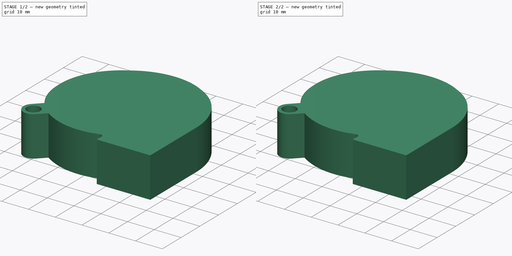
[diagram: build sequence overview — one tinted view per stage of 2, left to right]
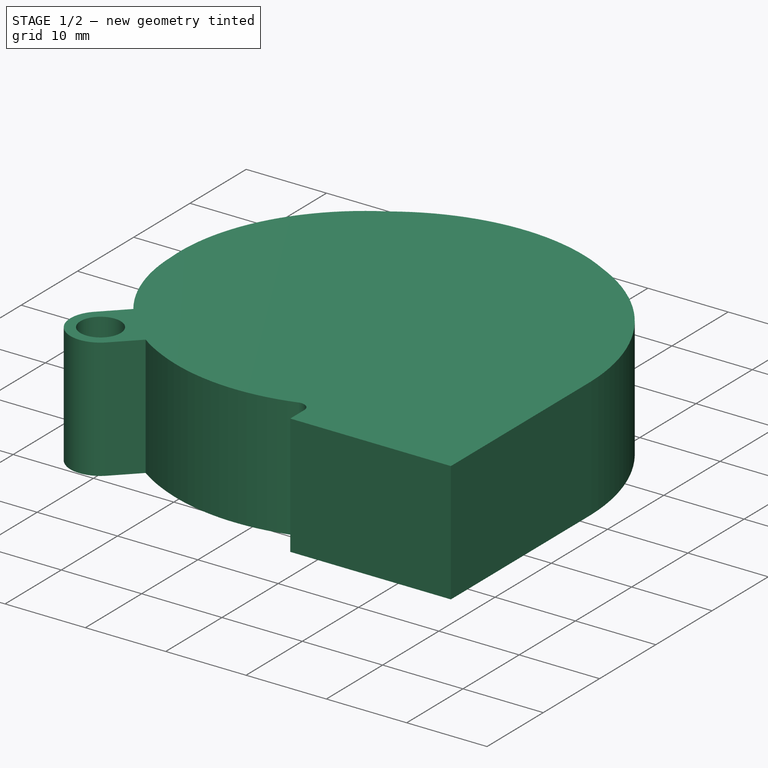
[diagram: stage 1 of 2 — iso view after this stage's code; geometry added in this stage tinted green]
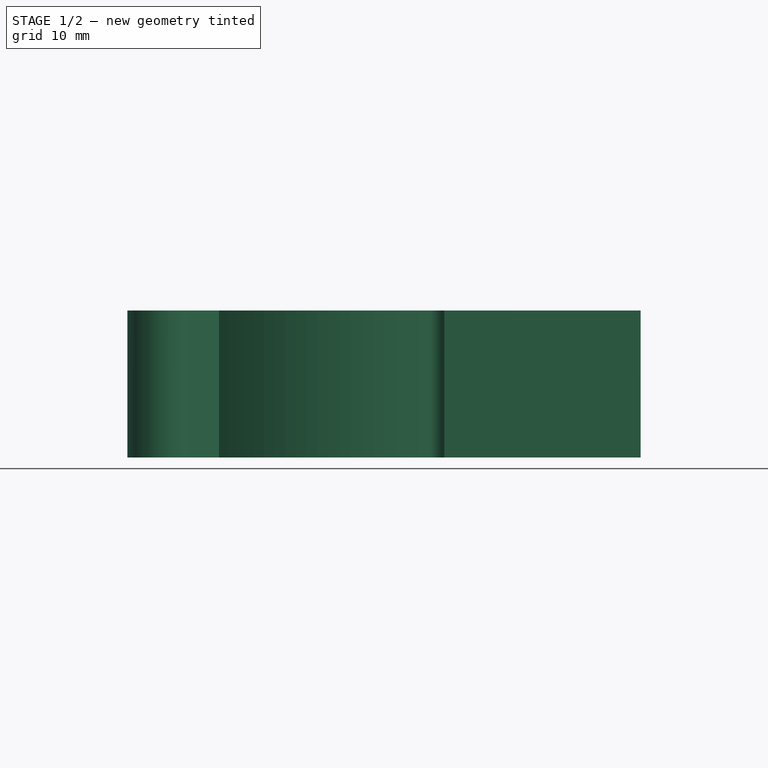
[diagram: stage 1 of 2 — front view after this stage's code; geometry added in this stage tinted green]
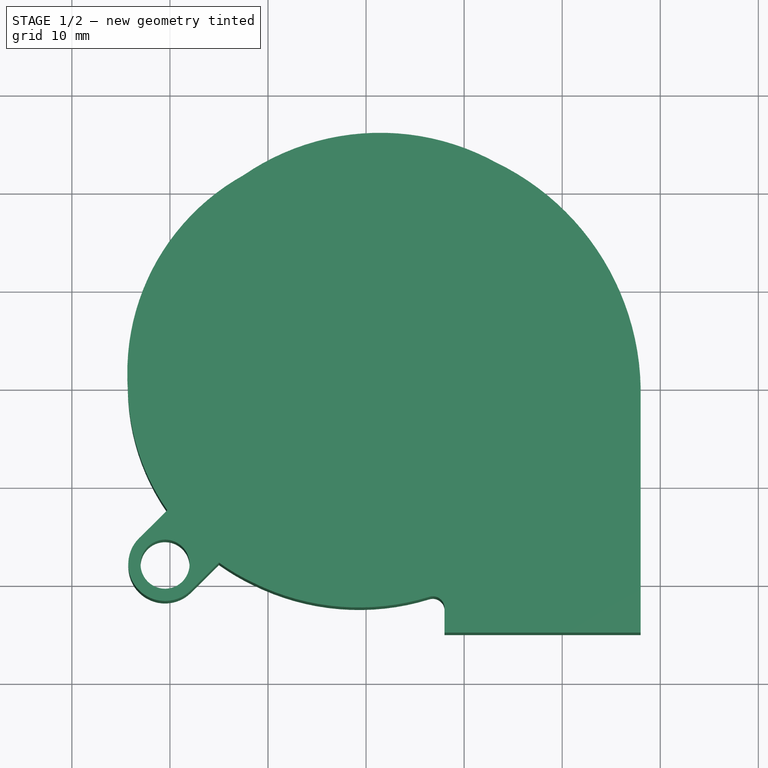
[diagram: stage 1 of 2 — top view after this stage's code; geometry added in this stage tinted green]
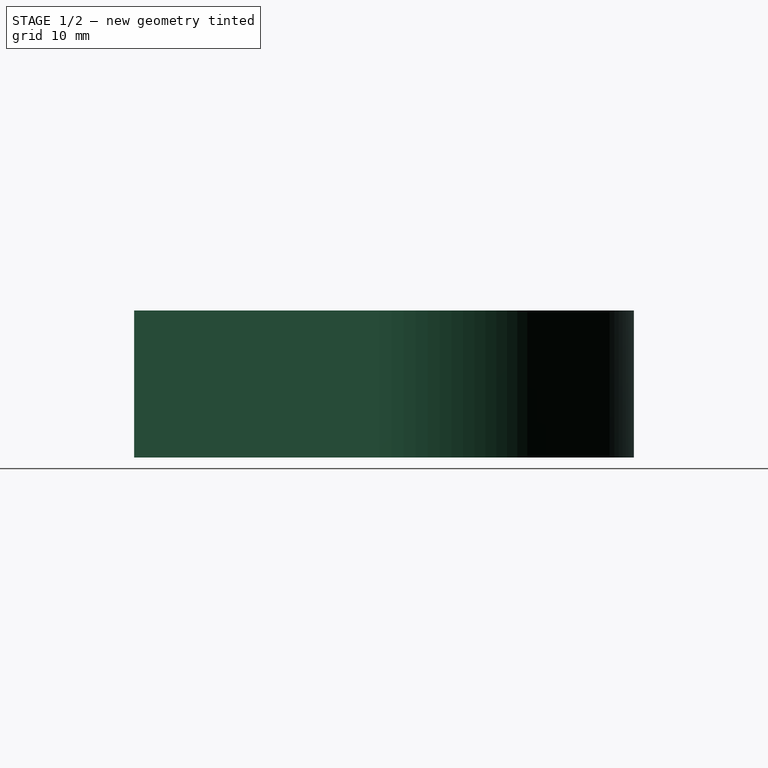
[diagram: stage 1 of 2 — right view after this stage's code; geometry added in this stage tinted green]
FCSTD DOCUMENT  (FreeCAD 0.16R5667 (Git))
Label: ventiladorCentrifugo
License: All rights reserved
LicenseURL: http://es.wikipedia.org/wiki/Todos_los_derechos_reservados
objects: Sketcher::SketchObject×2, PartDesign::Pad×2, Part::FeaturePython×1
note: 7 computed .brp shape members not serialized (recipe doc carries the construction recipe); baked Part::Feature solids carry a one-line shape summary decoded from their .brp

FEATURE [Sketcher::SketchObject] Sketch
  sketch-geometry (20):
    g0: Circle [constr] CenterX=0 CenterY=0 CenterZ=0 NormalX=0 NormalY=0 NormalZ=1 Radius=13
    g1: LineSegment [constr] StartX=13 StartY=0 StartZ=0 EndX=28 EndY=0 EndZ=0
    g2: LineSegment [constr] StartX=13 StartY=0 StartZ=0 EndX=-13 EndY=0 EndZ=0
    g3: LineSegment [constr] StartX=-13 StartY=0 StartZ=0 EndX=-24.3 EndY=0 EndZ=0
    g4: LineSegment [constr] StartX=13.25 StartY=22.9497 StartZ=0 EndX=6.5 EndY=11.2583 EndZ=0
    g5: LineSegment [constr] StartX=-6.5 StartY=-11.2583 StartZ=0 EndX=-11.5 EndY=-19.9186 EndZ=0
    g6: LineSegment [constr] StartX=-6.5 StartY=-11.2583 StartZ=0 EndX=6.5 EndY=11.2583 EndZ=0
    g7: LineSegment [constr] StartX=-12.5 StartY=21.6506 StartZ=0 EndX=-6.5 EndY=11.2583 EndZ=0
    g8: LineSegment [constr] StartX=-6.5 StartY=11.2583 StartZ=0 EndX=6.5 EndY=-11.2583 EndZ=0
    g9: LineSegment [constr] StartX=6.5 StartY=-11.2583 StartZ=0 EndX=14.4338 EndY=-25 EndZ=0
    g10: ArcOfCircle CenterX=1.92456 CenterY=-0.544139 CenterZ=0 NormalX=0 NormalY=0 NormalZ=1 Radius=26.0811 StartAngle=0.0208648 EndAngle=1.1216
    g11: ArcOfCircle CenterX=1.42943 CenterY=1.39883 CenterZ=0 NormalX=0 NormalY=0 NormalZ=1 Radius=24.5798 StartAngle=1.06911 EndAngle=2.1733
    g12: ArcOfCircle CenterX=-1.31022 CenterY=1.51107 CenterZ=0 NormalX=0 NormalY=0 NormalZ=1 Radius=23.0394 StartAngle=2.07794 EndAngle=3.20723
    g13: ArcOfCircle CenterX=-1.98168 CenterY=0.270073 CenterZ=0 NormalX=0 NormalY=0 NormalZ=1 Radius=22.32 StartAngle=3.15369 EndAngle=4.27183
    g14: LineSegment StartX=28 StartY=0 StartZ=0 EndX=28 EndY=-25 EndZ=0
    g15: LineSegment StartX=28 StartY=-25 StartZ=0 EndX=8 EndY=-25 EndZ=0
    g16: LineSegment StartX=8 StartY=-25 StartZ=0 EndX=8 EndY=-22.5 EndZ=0
    g17: ArcOfCircle CenterX=-0.72857 CenterY=1.86257 CenterZ=0 NormalX=0 NormalY=0 NormalZ=1 Radius=24.299 StartAngle=4.25313 EndAngle=5.01064
    g18: Circle [constr] CenterX=0 CenterY=0 CenterZ=0 NormalX=0 NormalY=0 NormalZ=1 Radius=2
    g19: ArcOfCircle CenterX=6.79938 CenterY=-22.5 CenterZ=0 NormalX=0 NormalY=0 NormalZ=1 Radius=1.20062 StartAngle=6.28319 EndAngle=8.1827
  constraints (61):
    c: Coincident(g0,g-1)
    c: Radius(g0) = 13
    c: PointOnObject(g1,g0)
    c: Horizontal(g1)
    c: Coincident(g2,g1)
    c: PointOnObject(g2,g0)
    c: Horizontal(g2)
    c: Coincident(g3,g2)
    c: Horizontal(g3)
    c: PointOnObject(g4,g0)
    c: PointOnObject(g5,g0)
    c: Coincident(g6,g4)
    c: PointOnObject(g7,g0)
    c: Coincident(g8,g7)
    c: PointOnObject(g8,g0)
    c: Coincident(g9,g8)
    c: PointOnObject(g-1,g2)
    c: PointOnObject(g-1,g6)
    c: PointOnObject(g-1,g8)
    c: Parallel(g7,g8)
    c: Parallel(g8,g9)
    c: Parallel(g4,g6)
    c: Parallel(g6,g5)
    c: Coincident(g6,g5)
    c: Angle(g1,g4) = 1.0472
    c: Angle(g4,g7) = 1.0472
    c: Angle(g7,g3) = 1.0472
    c: Coincident(g10,g1)
    c: Coincident(g10,g4)
    c: Coincident(g11,g4)
    c: Coincident(g11,g7)
    c: Coincident(g12,g7)
    c: Coincident(g12,g3)
    c: Coincident(g13,g3)
    c: Coincident(g13,g5)
    c: Coincident(g1,g14)
    c: Vertical(g14)
    c: Coincident(g14,g15)
    c: Horizontal(g15)
    c: Coincident(g15,g16)
    c: Vertical(g16)
    c: Coincident(g17,g5)
    c: Distance(g14) = 25
    c: Distance(g1) = 15
    c: Distance(g15) = 20
    c: PointOnObject(g9,g15)
    c: Distance(g4) = 13.5
    c: Distance(g7) = 12
    c: Distance(g3) = 11.3
    c: Distance(g5) = 10
    c: Coincident(g18,g-1)
    c: PointOnObject(g10,g18)
    c: PointOnObject(g11,g18)
    c: PointOnObject(g17,g18)
    c: PointOnObject(g12,g18)
    c: PointOnObject(g13,g18)
    c: Coincident(g19,g17)
    c: Coincident(g19,g16)
    c: Tangent(g16,g19)
    c: Distance(g16) = 2.5
    c: Radius(g18) = 2
FEATURE [PartDesign::Pad] Pad
  Length = 15
  Length2 = 100
  Sketch = -> Sketch
  Type = 0
FEATURE [Sketcher::SketchObject] Sketch001
  ExternalGeometry = -> [Pad]
  Placement = pos=(0,0,0) rot=(1,0,0;3.14159rad)
  Support = -> Pad [Face10]
  sketch-geometry (8):
    g0: LineSegment StartX=-15 StartY=17.8601 StartZ=0 EndX=-17.8647 EndY=20.6898 EndZ=0
    g1: LineSegment StartX=-20.2706 StartY=12.5243 StartZ=0 EndX=-23.1353 EndY=15.354 EndZ=0
    g2: LineSegment [constr] StartX=-23.1353 StartY=15.354 StartZ=0 EndX=-20.5 EndY=18.0219 EndZ=0
    g3: LineSegment [constr] StartX=-20.5 StartY=18.0219 StartZ=0 EndX=-17.8647 EndY=20.6898 EndZ=0
    g4: ArcOfCircle CenterX=-20.5 CenterY=18.0219 CenterZ=0 NormalX=0 NormalY=0 NormalZ=1 Radius=3.75 StartAngle=0.791547 EndAngle=3.93314
    g5: Circle CenterX=-20.5 CenterY=18.0219 CenterZ=0 NormalX=0 NormalY=0 NormalZ=1 Radius=2.5
    g6: LineSegment [constr] StartX=-18 StartY=-5.2886 StartZ=0 EndX=-18 EndY=37.5788 EndZ=0
    g7: ArcOfCircle CenterX=-1.98168 CenterY=-0.270073 CenterZ=0 NormalX=0 NormalY=0 NormalZ=1 Radius=22.32 StartAngle=2.19353 EndAngle=2.53116
  constraints (23):
    c: PointOnObject(g0,g-3)
    c: PointOnObject(g1,g-3)
    c: Parallel(g1,g0)
    c: Coincident(g2,g1)
    c: Coincident(g3,g2)
    c: Coincident(g3,g0)
    c: Equal(g3,g2)
    c: Parallel(g2,g3)
    c: Coincident(g4,g2)
    c: Coincident(g4,g1)
    c: Coincident(g4,g0)
    c: Coincident(g5,g2)
    c: Radius(g4) = 3.75
    c: Perpendicular(g1,g2)
    c: Radius(g5) = 2.5
    c: DistanceX(g0,g-4) = 23
    c: Vertical(g6)
    c: Tangent(g5,g6)
    c: Distance(g-4,g6) = 26
    c: Equal(g1,g0)
    c: Coincident(g7,g0)
    c: Coincident(g7,g1)
    c: Equal(g7,g-3)
FEATURE [PartDesign::Pad] Pad001
  Length = 15
  Length2 = 100
  Reversed = true
  Sketch = -> Sketch001
  Type = 0
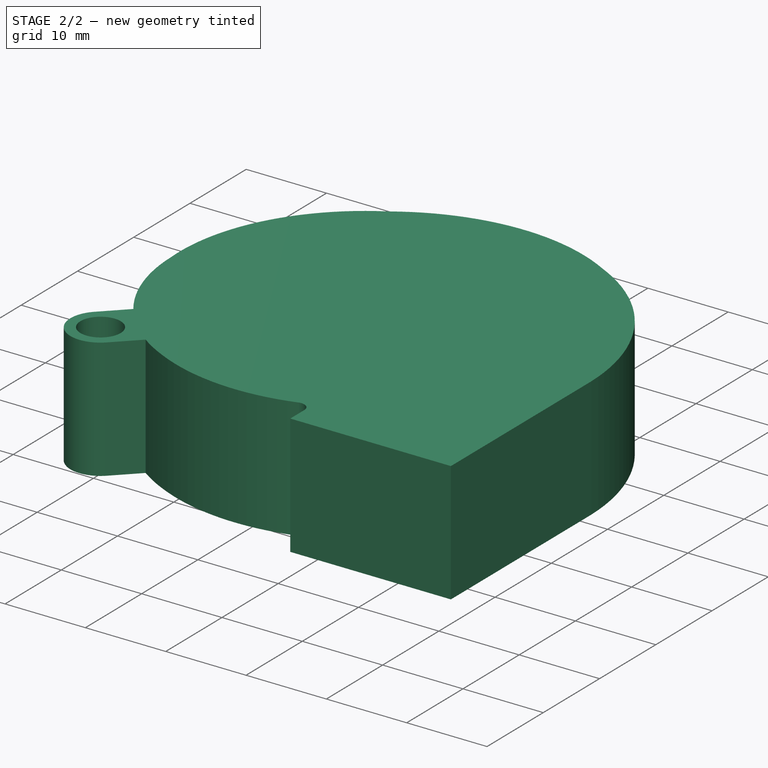
[diagram: stage 2 of 2 — iso view after this stage's code; geometry added in this stage tinted green]
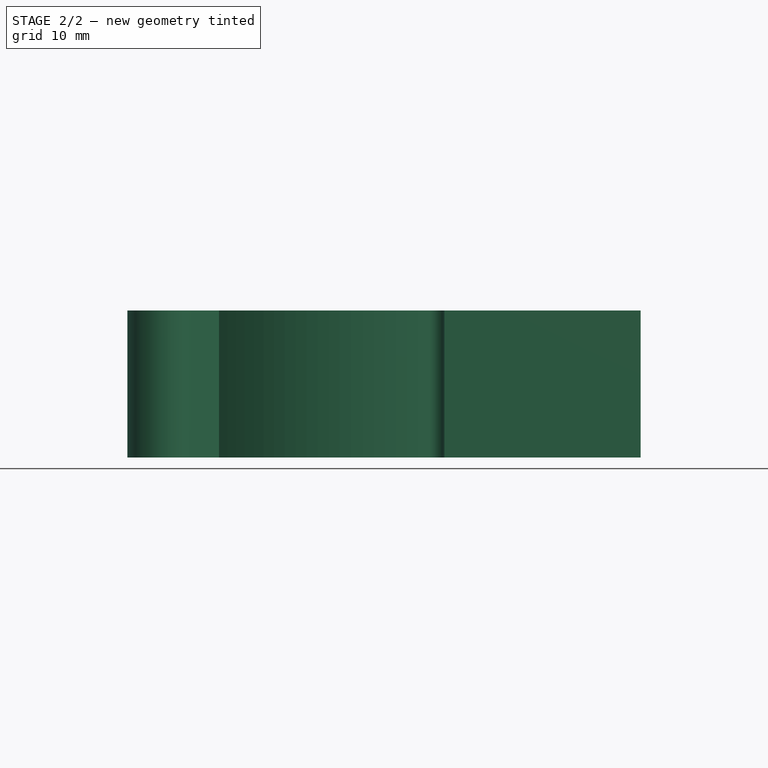
[diagram: stage 2 of 2 — front view after this stage's code; geometry added in this stage tinted green]
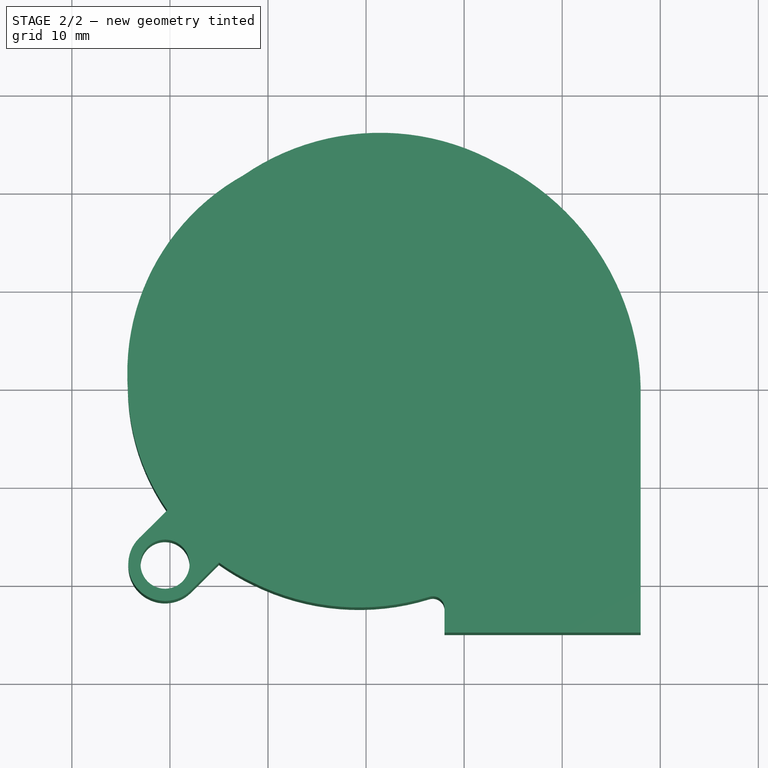
[diagram: stage 2 of 2 — top view after this stage's code; geometry added in this stage tinted green]
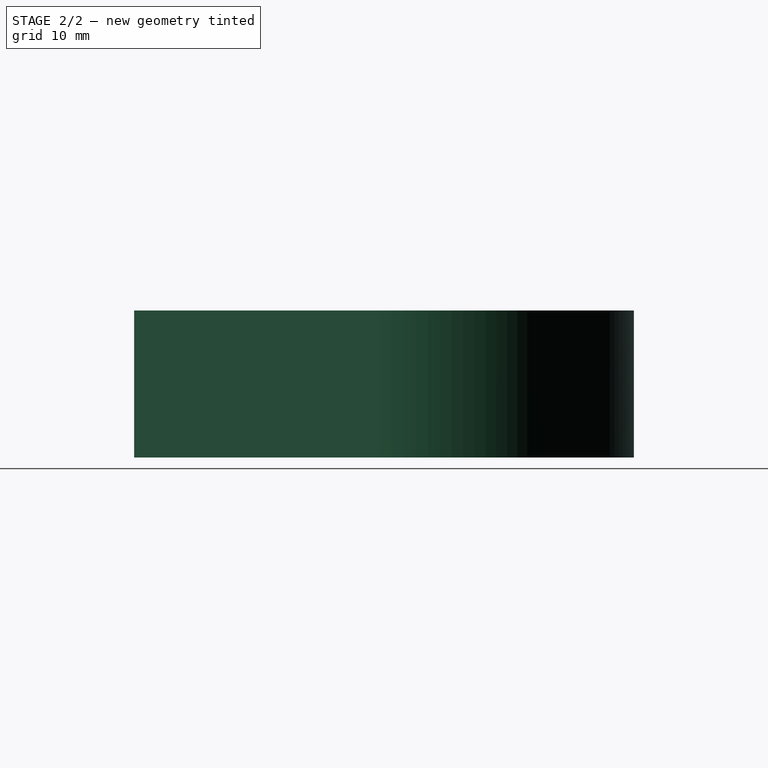
[diagram: stage 2 of 2 — right view after this stage's code; geometry added in this stage tinted green]
FEATURE [Part::FeaturePython] Clone  label="Clone of Pad001"  # Draft clone (typed FeaturePython)
  Objects = -> [Pad001]
  Scale = (1,1,1)
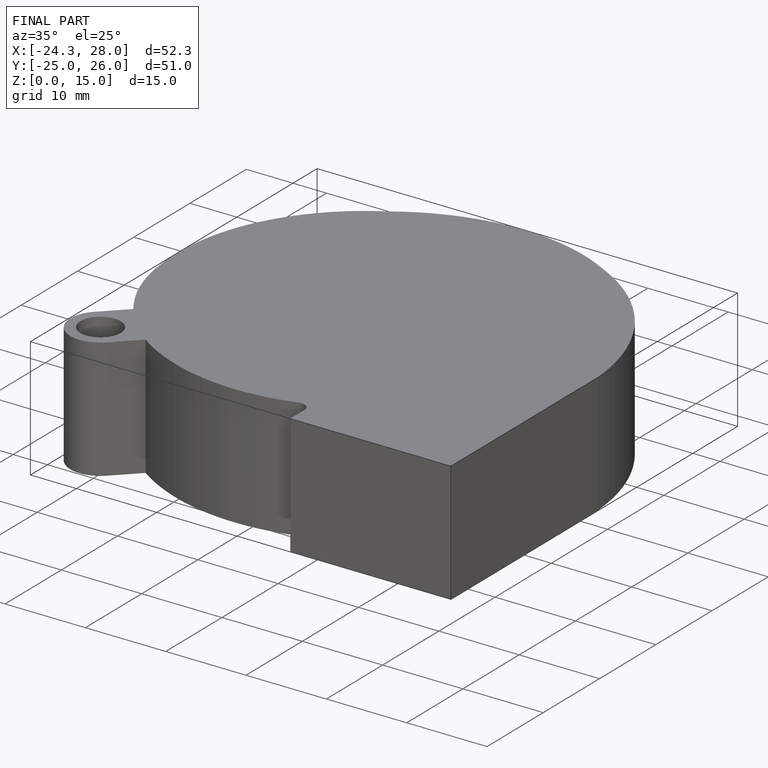
[diagram: finished part — iso view with bounding-box wireframe]
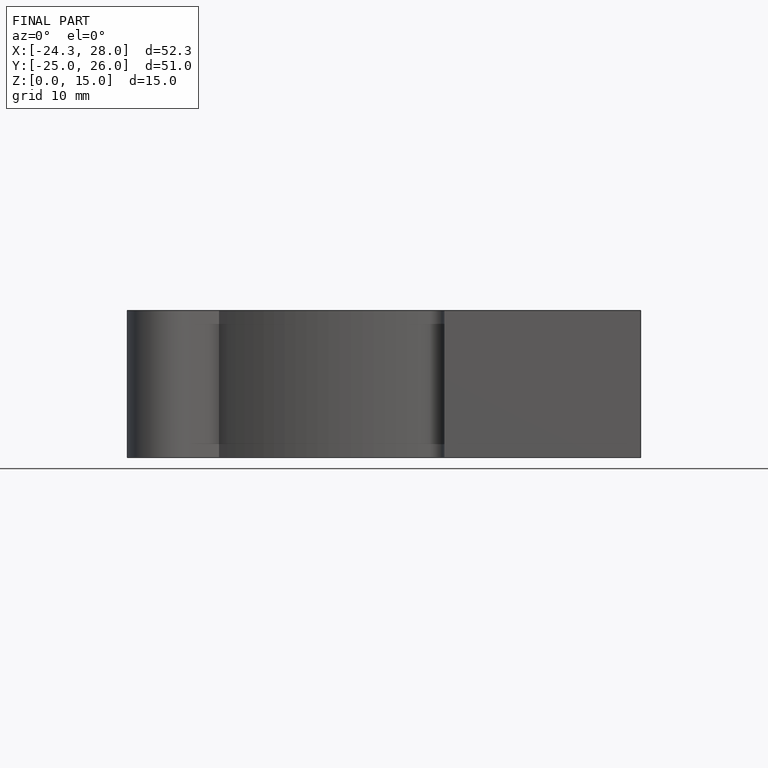
[diagram: finished part — front view with bounding-box wireframe]
